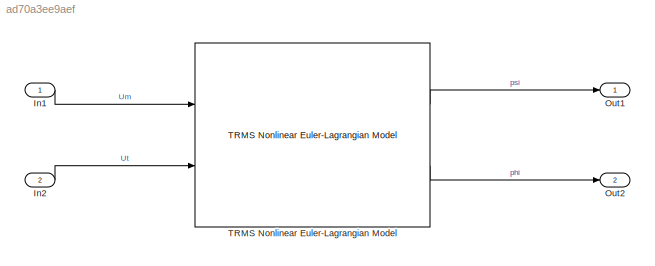
MODEL slx_ad70a3ee9aef
KIND model
CONFIG AbsTol = auto
CONFIG FixedStep = auto
CONFIG MaxStep = auto
CONFIG MinStep = auto
CONFIG RelTol = 1e-3
CONFIG SampleTimeConstraint = Unconstrained
CONFIG Solver = VariableStepAuto
CONFIG SolverMode = Auto
CONFIG SolverName = VariableStepAuto
CONFIG StartTime = 0.0
CONFIG StopTime = 10.0
BLOCK [Inport] In1
  IconDisplay = Port number
BLOCK [Inport] In2
  IconDisplay = Port number
  Port = 2
BLOCK [Outport] Out1
  IconDisplay = Port number
BLOCK [Outport] Out2
  IconDisplay = Port number
  Port = 2
BLOCK [Reference] TRMS Nonlinear Euler-Lagrangian Model  REF=lib_Lagrangian_Model_Nonlinear/TRMS
Nonlinear Euler-Lagrangian Model
  Ports = [2, 2]
  SourceBlock = lib_Lagrangian_Model_Nonlinear/TRMS\nNonlinear Euler-Lagrangian Model
LINE In1:1 -> TRMS Nonlinear Euler-Lagrangian Model:1
LINE In2:1 -> TRMS Nonlinear Euler-Lagrangian Model:2
LINE TRMS Nonlinear Euler-Lagrangian Model:1 -> Out1:1
LINE TRMS Nonlinear Euler-Lagrangian Model:2 -> Out2:1
